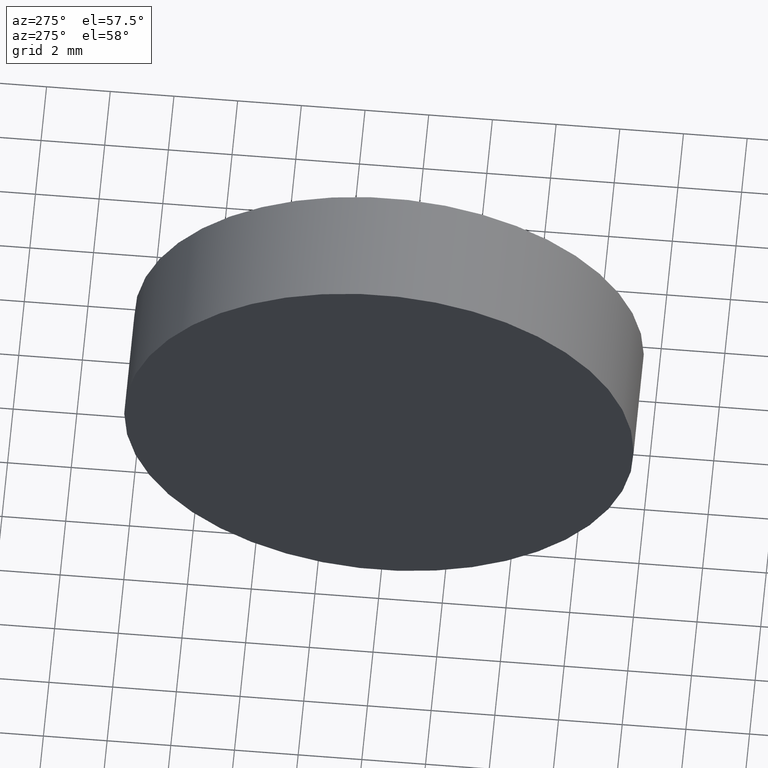
[diagram: clean part render]
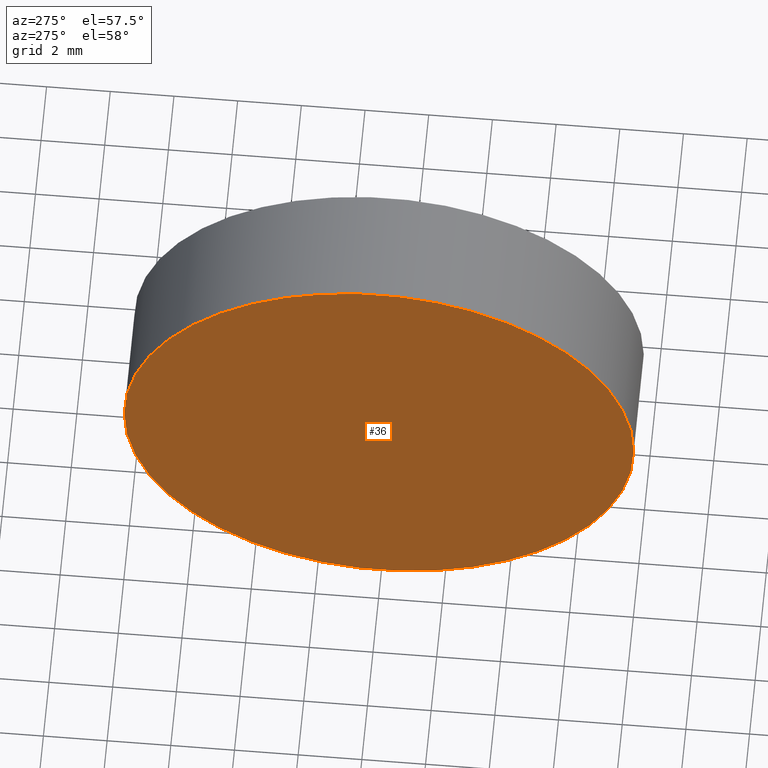
[diagram: same view with one face highlighted and labeled with its STEP entity id]
A machine part, auxiliary view. The second image highlights one B-rep face of the part: STEP entity #36.
In plain terms, the highlighted planar face has unit normal (1, -0, 0).
Its self-contained STEP definition (entity closure, byte-faithful):
#13 = CARTESIAN_POINT ( 'NONE',  ( 44.85442262622448300, 34.06225218280608400, 9.797174393178827600E-016 ) ) ;
#17 = EDGE_LOOP ( 'NONE', ( #99, #48 ) ) ;
#18 = AXIS2_PLACEMENT_3D ( 'NONE', #106, #37, #122 ) ;
#30 = EDGE_CURVE ( 'NONE', #78, #125, #141, .T. ) ;
#36 = ADVANCED_FACE ( 'NONE', ( #71 ), #80, .F. ) ;
#37 = DIRECTION ( 'NONE',  ( -1.000000000000000000, 4.058245434298766700E-016, -0.0000000000000000000 ) ) ;
#39 = DIRECTION ( 'NONE',  ( 4.058245434298766700E-016, 1.000000000000000000, 0.0000000000000000000 ) ) ;
#48 = ORIENTED_EDGE ( 'NONE', *, *, #30, .T. ) ;
#49 = EDGE_CURVE ( 'NONE', #125, #78, #129, .T. ) ;
#71 = FACE_OUTER_BOUND ( 'NONE', #17, .T. ) ;
#78 = VERTEX_POINT ( 'NONE', #13 ) ;
#80 = PLANE ( 'NONE',  #96 ) ;
#96 = AXIS2_PLACEMENT_3D ( 'NONE', #134, #153, #39 ) ;
#99 = ORIENTED_EDGE ( 'NONE', *, *, #49, .T. ) ;
#106 = CARTESIAN_POINT ( 'NONE',  ( 44.85442262622448300, 26.06225218280608400, 0.0000000000000000000 ) ) ;
#122 = DIRECTION ( 'NONE',  ( 0.0000000000000000000, -1.000000000000000000, 0.0000000000000000000 ) ) ;
#125 = VERTEX_POINT ( 'NONE', #161 ) ;
#129 = CIRCLE ( 'NONE', #164, 8.000000000000000000 ) ;
#134 = CARTESIAN_POINT ( 'NONE',  ( 44.85442262622448300, 26.06225218280608400, 0.0000000000000000000 ) ) ;
#139 = CARTESIAN_POINT ( 'NONE',  ( 44.85442262622448300, 26.06225218280608400, 0.0000000000000000000 ) ) ;
#141 = CIRCLE ( 'NONE', #18, 8.000000000000000000 ) ;
#153 = DIRECTION ( 'NONE',  ( 1.000000000000000000, -4.058245434298766700E-016, 0.0000000000000000000 ) ) ;
#161 = CARTESIAN_POINT ( 'NONE',  ( 44.85442262622448300, 18.06225218280608400, 0.0000000000000000000 ) ) ;
#163 = DIRECTION ( 'NONE',  ( -1.000000000000000000, 4.058245434298766700E-016, -0.0000000000000000000 ) ) ;
#164 = AXIS2_PLACEMENT_3D ( 'NONE', #139, #163, #166 ) ;
#166 = DIRECTION ( 'NONE',  ( 0.0000000000000000000, -1.000000000000000000, 0.0000000000000000000 ) ) ;